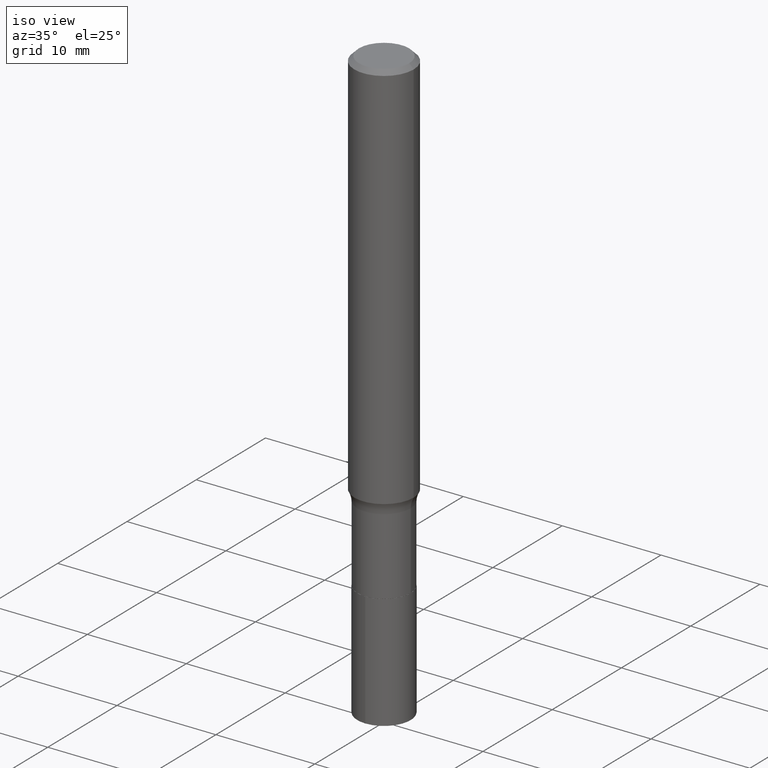
[diagram: clean part render]
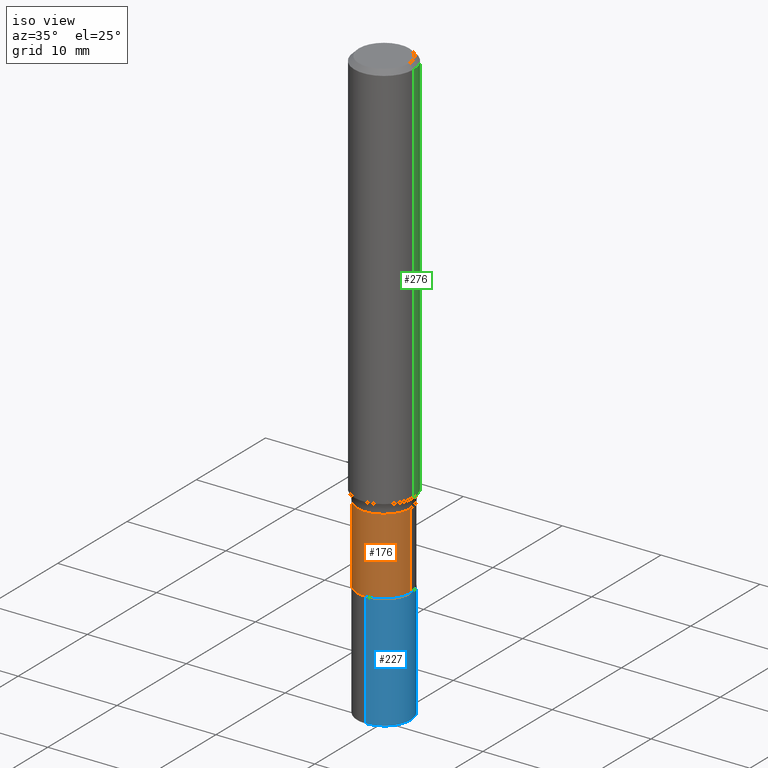
[diagram: same view with three faces highlighted in distinct colors, each labeled with its STEP entity id]
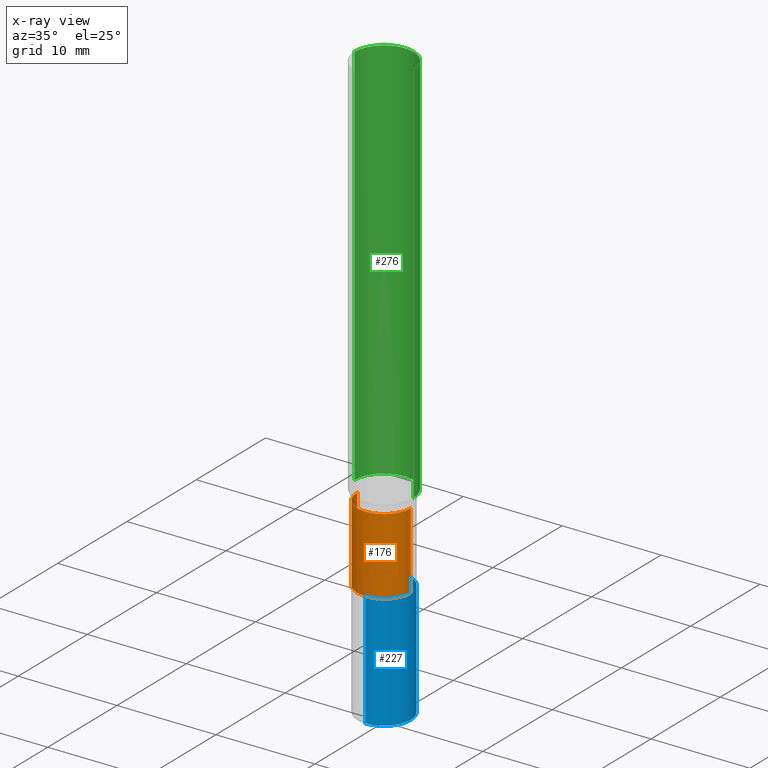
[diagram: x-ray of the same camera — body ghosted, the three highlighted faces saturated]
A machine part, iso view with three faces highlighted in distinct colors.
The next image is the same camera in x-ray (body ghosted, the three faces saturated) — at least one of them is partly hidden behind the body in this view.
Their STEP definitions:

[orange] entity #176 — the highlighted cylindrical surface (edge-blend (fillet) strip) has radius 2.7 mm, axis along (-0, 0, 1).
#25 = DIRECTION ( 'NONE',  ( -2.445468806185136597E-29, 3.491481338843145583E-15, 1.000000000000000000 ) ) ;
#29 = LINE ( 'NONE', #332, #383 ) ;
#32 = CYLINDRICAL_SURFACE ( 'NONE', #156, 0.1062999999999999917 ) ;
#37 = EDGE_CURVE ( 'NONE', #375, #124, #131, .T. ) ;
#42 = VERTEX_POINT ( 'NONE', #296 ) ;
#49 = DIRECTION ( 'NONE',  ( -2.445468806185136877E-29, 3.491481338843145188E-15, 1.000000000000000000 ) ) ;
#50 = ORIENTED_EDGE ( 'NONE', *, *, #138, .T. ) ;
#70 = FACE_OUTER_BOUND ( 'NONE', #414, .T. ) ;
#84 = ORIENTED_EDGE ( 'NONE', *, *, #111, .F. ) ;
#98 = VERTEX_POINT ( 'NONE', #215 ) ;
#100 = CIRCLE ( 'NONE', #371, 0.1063000000000000056 ) ;
#110 = DIRECTION ( 'NONE',  ( -2.445468806185136597E-29, 3.491481338843145583E-15, 1.000000000000000000 ) ) ;
#111 = EDGE_CURVE ( 'NONE', #42, #375, #29, .T. ) ;
#124 = VERTEX_POINT ( 'NONE', #128 ) ;
#128 = CARTESIAN_POINT ( 'NONE',  ( 0.1062999999999999640, -6.329706519188737709E-15, -1.600300000000000500 ) ) ;
#130 = CARTESIAN_POINT ( 'NONE',  ( -0.1062999999999999640, -5.363514118209626835E-15, -1.600300000000000500 ) ) ;
#131 = CIRCLE ( 'NONE', #282, 0.1062999999999999640 ) ;
#138 = EDGE_CURVE ( 'NONE', #42, #98, #100, .T. ) ;
#149 = EDGE_CURVE ( 'NONE', #98, #124, #381, .T. ) ;
#156 = AXIS2_PLACEMENT_3D ( 'NONE', #186, #110, #466 ) ;
#176 = ADVANCED_FACE ( 'NONE', ( #70 ), #32, .T. ) ;
#186 = CARTESIAN_POINT ( 'NONE',  ( 0.000000000000000000, 0.000000000000000000, 0.000000000000000000 ) ) ;
#194 = DIRECTION ( 'NONE',  ( 1.000000000000000000, -6.982962677686269077E-15, 0.000000000000000000 ) ) ;
#215 = CARTESIAN_POINT ( 'NONE',  ( 0.1063000000000000056, -7.392513438732591680E-15, -1.904700000000000282 ) ) ;
#246 = ORIENTED_EDGE ( 'NONE', *, *, #149, .T. ) ;
#282 = AXIS2_PLACEMENT_3D ( 'NONE', #363, #25, #331 ) ;
#296 = CARTESIAN_POINT ( 'NONE',  ( -0.1063000000000000056, -5.363514118209626835E-15, -1.904700000000000282 ) ) ;
#331 = DIRECTION ( 'NONE',  ( 1.000000000000000000, -6.982962677686271444E-15, 0.000000000000000000 ) ) ;
#332 = CARTESIAN_POINT ( 'NONE',  ( -0.1062999999999999917, 7.553069281129864387E-16, -5.228828000940964357E-30 ) ) ;
#363 = CARTESIAN_POINT ( 'NONE',  ( 3.913483730538075020E-29, -5.587417586550687570E-15, -1.600300000000000500 ) ) ;
#371 = AXIS2_PLACEMENT_3D ( 'NONE', #443, #412, #194 ) ;
#375 = VERTEX_POINT ( 'NONE', #130 ) ;
#381 = LINE ( 'NONE', #389, #437 ) ;
#383 = VECTOR ( 'NONE', #464, 39.37007874015748143 ) ;
#389 = CARTESIAN_POINT ( 'NONE',  ( 0.1062999999999999917, -7.422889326380501387E-16, 5.183375912671078649E-30 ) ) ;
#398 = ORIENTED_EDGE ( 'NONE', *, *, #37, .F. ) ;
#412 = DIRECTION ( 'NONE',  ( -2.445468806185136597E-29, 3.491481338843145583E-15, 1.000000000000000000 ) ) ;
#414 = EDGE_LOOP ( 'NONE', ( #84, #50, #246, #398 ) ) ;
#437 = VECTOR ( 'NONE', #49, 39.37007874015748143 ) ;
#443 = CARTESIAN_POINT ( 'NONE',  ( 4.657884435140829962E-29, -6.650224506094540752E-15, -1.904700000000000282 ) ) ;
#464 = DIRECTION ( 'NONE',  ( -2.445468806185136877E-29, 3.491481338843145188E-15, 1.000000000000000000 ) ) ;
#466 = DIRECTION ( 'NONE',  ( 1.000000000000000000, -6.982962677686267499E-15, 4.876176775795935232E-29 ) ) ;

[blue] entity #227 — the highlighted cylindrical surface (edge-blend (fillet) strip) has radius 2.7 mm, axis along (-0, 0, 1).
#10 = AXIS2_PLACEMENT_3D ( 'NONE', #190, #306, #12 ) ;
#12 = DIRECTION ( 'NONE',  ( -6.982962677686265922E-15, -1.000000000000000000, 2.569941668545873170E-15 ) ) ;
#15 = DIRECTION ( 'NONE',  ( -2.480044218410043909E-29, 3.441967380626826386E-15, 1.000000000000000000 ) ) ;
#17 = EDGE_CURVE ( 'NONE', #152, #56, #107, .T. ) ;
#35 = CARTESIAN_POINT ( 'NONE',  ( -7.422889326380034973E-16, -0.1063000000000066669, -1.905200000000000005 ) ) ;
#46 = CYLINDRICAL_SURFACE ( 'NONE', #10, 0.1063000000000000056 ) ;
#56 = VERTEX_POINT ( 'NONE', #439 ) ;
#66 = CARTESIAN_POINT ( 'NONE',  ( 5.792487377357313463E-29, -8.224949339710422363E-15, -2.362200000000000522 ) ) ;
#90 = VECTOR ( 'NONE', #147, 39.37007874015748143 ) ;
#107 = CIRCLE ( 'NONE', #122, 0.1062999999999999917 ) ;
#117 = EDGE_CURVE ( 'NONE', #152, #328, #370, .T. ) ;
#118 = CARTESIAN_POINT ( 'NONE',  ( 7.553069281130443214E-16, 0.1062999999999933443, -1.905200000000000449 ) ) ;
#122 = AXIS2_PLACEMENT_3D ( 'NONE', #66, #326, #425 ) ;
#147 = DIRECTION ( 'NONE',  ( -2.480044218410043909E-29, 3.441967380626826386E-15, 1.000000000000000000 ) ) ;
#150 = VECTOR ( 'NONE', #181, 39.37007874015748143 ) ;
#152 = VERTEX_POINT ( 'NONE', #444 ) ;
#168 = ORIENTED_EDGE ( 'NONE', *, *, #385, .F. ) ;
#181 = DIRECTION ( 'NONE',  ( -2.480044218410043909E-29, 3.441967380626826386E-15, 1.000000000000000000 ) ) ;
#188 = EDGE_CURVE ( 'NONE', #56, #275, #301, .T. ) ;
#190 = CARTESIAN_POINT ( 'NONE',  ( 4.659107169543922763E-29, -6.651970246763962256E-15, -1.905200000000000227 ) ) ;
#196 = CARTESIAN_POINT ( 'NONE',  ( 4.659107169543922763E-29, -6.651970246763962256E-15, -1.905200000000000227 ) ) ;
#199 = ORIENTED_EDGE ( 'NONE', *, *, #117, .F. ) ;
#227 = ADVANCED_FACE ( 'NONE', ( #348 ), #46, .T. ) ;
#233 = EDGE_LOOP ( 'NONE', ( #339, #349, #168, #199 ) ) ;
#252 = CARTESIAN_POINT ( 'NONE',  ( 7.553069281130329815E-16, 0.1062999999999933443, -1.905200000000000449 ) ) ;
#269 = CARTESIAN_POINT ( 'NONE',  ( -7.422889326380034973E-16, -0.1063000000000066669, -1.905200000000000005 ) ) ;
#275 = VERTEX_POINT ( 'NONE', #118 ) ;
#283 = CIRCLE ( 'NONE', #410, 0.1063000000000000056 ) ;
#301 = LINE ( 'NONE', #252, #90 ) ;
#306 = DIRECTION ( 'NONE',  ( -2.480044218410043909E-29, 3.441967380626826386E-15, 1.000000000000000000 ) ) ;
#326 = DIRECTION ( 'NONE',  ( -2.480044218410043909E-29, 3.441967380626826386E-15, 1.000000000000000000 ) ) ;
#328 = VERTEX_POINT ( 'NONE', #269 ) ;
#339 = ORIENTED_EDGE ( 'NONE', *, *, #17, .T. ) ;
#348 = FACE_OUTER_BOUND ( 'NONE', #233, .T. ) ;
#349 = ORIENTED_EDGE ( 'NONE', *, *, #188, .T. ) ;
#370 = LINE ( 'NONE', #35, #150 ) ;
#385 = EDGE_CURVE ( 'NONE', #328, #275, #283, .T. ) ;
#410 = AXIS2_PLACEMENT_3D ( 'NONE', #196, #15, #454 ) ;
#425 = DIRECTION ( 'NONE',  ( -6.982962677686265922E-15, -1.000000000000000000, 2.569941668545873564E-15 ) ) ;
#439 = CARTESIAN_POINT ( 'NONE',  ( 7.553069281130386022E-16, 0.1062999999999917622, -2.362200000000000966 ) ) ;
#444 = CARTESIAN_POINT ( 'NONE',  ( -7.422889326379921574E-16, -0.1063000000000082212, -2.362200000000000077 ) ) ;
#454 = DIRECTION ( 'NONE',  ( -6.982962677686265922E-15, -1.000000000000000000, 2.569941668545873170E-15 ) ) ;

[green] entity #276 — the highlighted cylindrical surface (edge-blend (fillet) strip) has radius 2.9997 mm, axis along (-0, 0, 1).
#13 = DIRECTION ( 'NONE',  ( 1.000000000000000000, -6.982962677686266711E-15, 0.000000000000000000 ) ) ;
#21 = VERTEX_POINT ( 'NONE', #103 ) ;
#36 = CARTESIAN_POINT ( 'NONE',  ( 3.811218681036217302E-29, -5.441410198908476994E-15, -1.558481822134387462 ) ) ;
#43 = FACE_OUTER_BOUND ( 'NONE', #309, .T. ) ;
#51 = AXIS2_PLACEMENT_3D ( 'NONE', #198, #303, #13 ) ;
#62 = VECTOR ( 'NONE', #220, 39.37007874015748143 ) ;
#63 = ORIENTED_EDGE ( 'NONE', *, *, #369, .T. ) ;
#103 = CARTESIAN_POINT ( 'NONE',  ( 0.1180999999999999966, -8.865394841523547570E-16, -0.01771500000000011260 ) ) ;
#178 = CARTESIAN_POINT ( 'NONE',  ( 0.1181000000000001077, -8.246878922347488542E-16, 5.758764772215005345E-30 ) ) ;
#182 = LINE ( 'NONE', #178, #62 ) ;
#191 = AXIS2_PLACEMENT_3D ( 'NONE', #321, #327, #351 ) ;
#198 = CARTESIAN_POINT ( 'NONE',  ( 4.332147990156996744E-31, -6.185159191760671627E-17, -0.01771500000000011260 ) ) ;
#200 = VERTEX_POINT ( 'NONE', #295 ) ;
#203 = ORIENTED_EDGE ( 'NONE', *, *, #423, .T. ) ;
#220 = DIRECTION ( 'NONE',  ( -2.445468806185136877E-29, 3.491481338843145188E-15, 1.000000000000000000 ) ) ;
#223 = VECTOR ( 'NONE', #372, 39.37007874015748143 ) ;
#247 = CIRCLE ( 'NONE', #384, 0.1181000000000002048 ) ;
#254 = LINE ( 'NONE', #403, #223 ) ;
#276 = ADVANCED_FACE ( 'NONE', ( #43 ), #396, .T. ) ;
#280 = VERTEX_POINT ( 'NONE', #284 ) ;
#284 = CARTESIAN_POINT ( 'NONE',  ( -0.1181000000000002187, -4.602259227975794853E-15, -1.558481822134387462 ) ) ;
#285 = DIRECTION ( 'NONE',  ( -2.445468806185136597E-29, 3.491481338843145583E-15, 1.000000000000000000 ) ) ;
#295 = CARTESIAN_POINT ( 'NONE',  ( 0.1181000000000002187, -6.266098091143226046E-15, -1.558481822134387462 ) ) ;
#303 = DIRECTION ( 'NONE',  ( -2.445468806185136597E-29, 3.491481338843145583E-15, 1.000000000000000000 ) ) ;
#309 = EDGE_LOOP ( 'NONE', ( #203, #63, #358, #463 ) ) ;
#321 = CARTESIAN_POINT ( 'NONE',  ( 0.000000000000000000, 0.000000000000000000, 0.000000000000000000 ) ) ;
#327 = DIRECTION ( 'NONE',  ( -2.445468806185136597E-29, 3.491481338843145583E-15, 1.000000000000000000 ) ) ;
#333 = EDGE_CURVE ( 'NONE', #21, #407, #465, .T. ) ;
#350 = EDGE_CURVE ( 'NONE', #200, #21, #182, .T. ) ;
#351 = DIRECTION ( 'NONE',  ( 1.000000000000000000, -6.982962677686266711E-15, 4.876176775795935793E-29 ) ) ;
#358 = ORIENTED_EDGE ( 'NONE', *, *, #333, .F. ) ;
#369 = EDGE_CURVE ( 'NONE', #280, #407, #254, .T. ) ;
#372 = DIRECTION ( 'NONE',  ( -2.445468806185136877E-29, 3.491481338843145188E-15, 1.000000000000000000 ) ) ;
#384 = AXIS2_PLACEMENT_3D ( 'NONE', #36, #285, #457 ) ;
#393 = CARTESIAN_POINT ( 'NONE',  ( -0.1180999999999999966, -1.912479924480361427E-15, -0.01771500000000011260 ) ) ;
#396 = CYLINDRICAL_SURFACE ( 'NONE', #191, 0.1181000000000001077 ) ;
#403 = CARTESIAN_POINT ( 'NONE',  ( -0.1181000000000001077, 8.391509709326790846E-16, -5.809262341591049389E-30 ) ) ;
#407 = VERTEX_POINT ( 'NONE', #393 ) ;
#423 = EDGE_CURVE ( 'NONE', #200, #280, #247, .T. ) ;
#457 = DIRECTION ( 'NONE',  ( 1.000000000000000000, -6.982962677686268288E-15, 0.000000000000000000 ) ) ;
#463 = ORIENTED_EDGE ( 'NONE', *, *, #350, .F. ) ;
#465 = CIRCLE ( 'NONE', #51, 0.1180999999999999966 ) ;